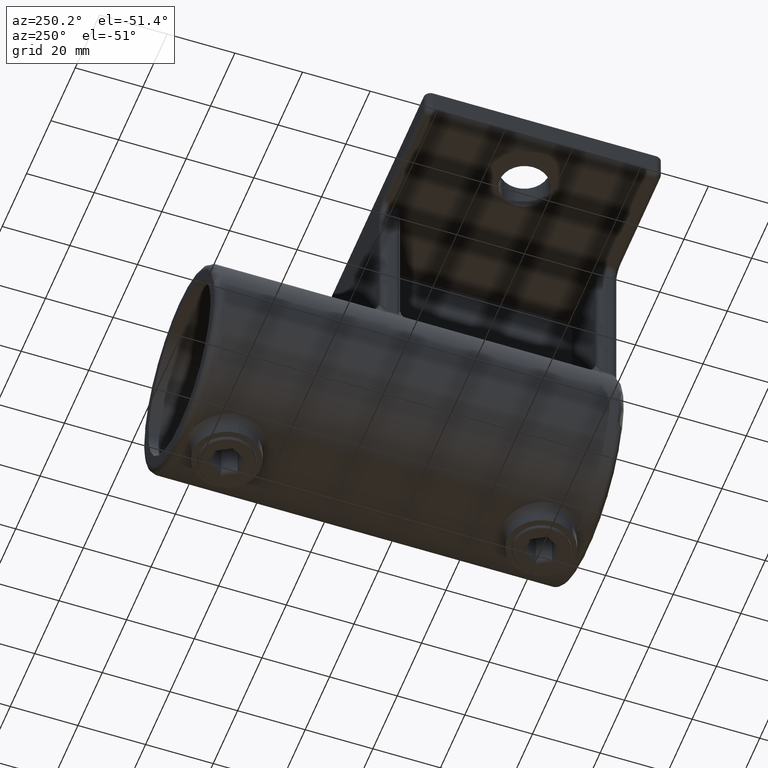
[diagram: clean part render]
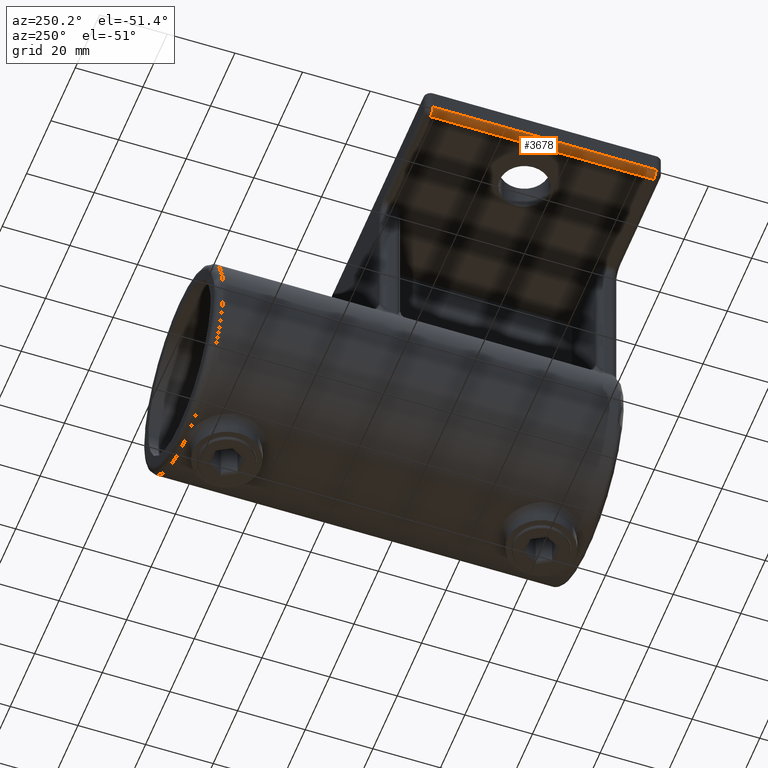
[diagram: same view with one face highlighted and labeled with its STEP entity id]
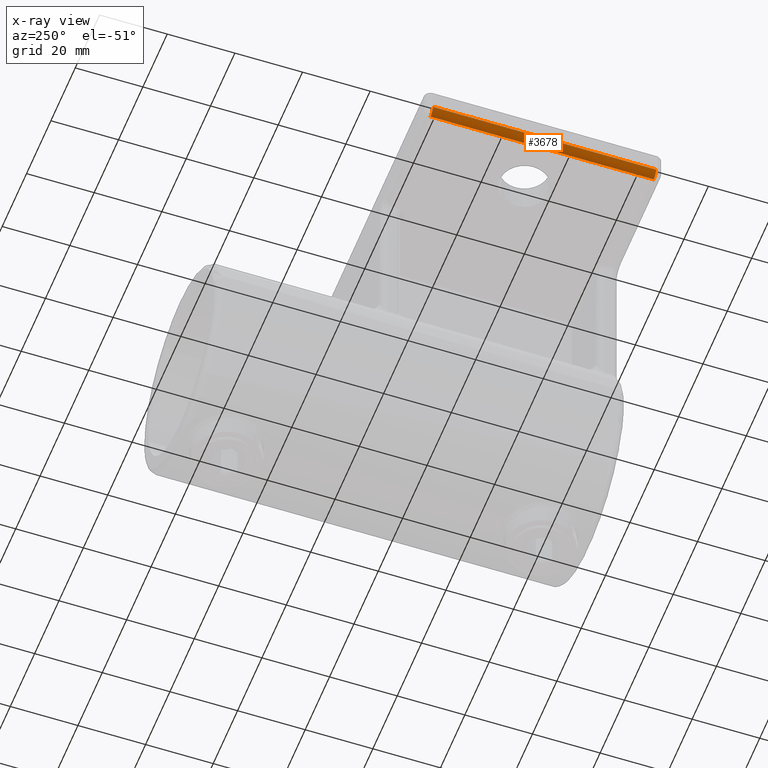
[diagram: x-ray of the same camera — body ghosted, the highlighted face saturated]
A machine part, auxiliary view. The second image highlights one B-rep face of the part: STEP entity #3678.
The next image is the same camera in x-ray: the body ghosted, the highlighted face saturated — about 0% of this face is hidden behind the body in this view.
In plain terms, the highlighted cylindrical surface (edge-blend (fillet) strip) has radius 2 mm, axis along (0, -1, 0).
Its self-contained STEP definition (entity closure, byte-faithful):
#14 = CARTESIAN_POINT ( 'NONE',  ( -59.00000000000001421, 35.00000000000000000, 2.000000000000000000 ) ) ;
#108 = ORIENTED_EDGE ( 'NONE', *, *, #1053, .F. ) ;
#274 = DIRECTION ( 'NONE',  ( 0.000000000000000000, 1.000000000000000000, 0.000000000000000000 ) ) ;
#346 = CIRCLE ( 'NONE', #3522, 2.000000000000000000 ) ;
#351 = AXIS2_PLACEMENT_3D ( 'NONE', #3680, #1420, #635 ) ;
#635 = DIRECTION ( 'NONE',  ( 0.000000000000000000, 0.000000000000000000, -1.000000000000000000 ) ) ;
#710 = LINE ( 'NONE', #2426, #2170 ) ;
#743 = CARTESIAN_POINT ( 'NONE',  ( -61.00000000000001421, 33.00000000000000000, 2.000000000000000000 ) ) ;
#1018 = EDGE_CURVE ( 'NONE', #1320, #1195, #3075, .T. ) ;
#1053 = EDGE_CURVE ( 'NONE', #1329, #3546, #346, .T. ) ;
#1195 = VERTEX_POINT ( 'NONE', #4057 ) ;
#1320 = VERTEX_POINT ( 'NONE', #1600 ) ;
#1329 = VERTEX_POINT ( 'NONE', #2773 ) ;
#1420 = DIRECTION ( 'NONE',  ( 0.000000000000000000, 1.000000000000000000, 0.000000000000000000 ) ) ;
#1600 = CARTESIAN_POINT ( 'NONE',  ( -59.00000000000001421, -33.00000000000000000, 0.000000000000000000 ) ) ;
#1958 = VECTOR ( 'NONE', #2583, 1000.000000000000000 ) ;
#2007 = ORIENTED_EDGE ( 'NONE', *, *, #1018, .T. ) ;
#2170 = VECTOR ( 'NONE', #3945, 1000.000000000000000 ) ;
#2342 = DIRECTION ( 'NONE',  ( 0.000000000000000000, 0.000000000000000000, -1.000000000000000000 ) ) ;
#2360 = EDGE_LOOP ( 'NONE', ( #2007, #2488, #108, #2707 ) ) ;
#2426 = CARTESIAN_POINT ( 'NONE',  ( -59.00000000000001421, 0.000000000000000000, 0.000000000000000000 ) ) ;
#2488 = ORIENTED_EDGE ( 'NONE', *, *, #3998, .F. ) ;
#2513 = CARTESIAN_POINT ( 'NONE',  ( -61.00000000000001421, 35.00000000000000000, 2.000000000000000000 ) ) ;
#2583 = DIRECTION ( 'NONE',  ( 0.000000000000000000, -1.000000000000000000, 0.000000000000000000 ) ) ;
#2707 = ORIENTED_EDGE ( 'NONE', *, *, #3336, .F. ) ;
#2715 = DIRECTION ( 'NONE',  ( 0.000000000000000000, -1.000000000000000000, 0.000000000000000000 ) ) ;
#2773 = CARTESIAN_POINT ( 'NONE',  ( -59.00000000000001421, 33.00000000000000000, 0.000000000000000000 ) ) ;
#3075 = CIRCLE ( 'NONE', #351, 2.000000000000000000 ) ;
#3237 = FACE_OUTER_BOUND ( 'NONE', #2360, .T. ) ;
#3302 = CARTESIAN_POINT ( 'NONE',  ( -59.00000000000001421, 33.00000000000000000, 2.000000000000000000 ) ) ;
#3336 = EDGE_CURVE ( 'NONE', #1320, #1329, #710, .T. ) ;
#3522 = AXIS2_PLACEMENT_3D ( 'NONE', #3302, #274, #4093 ) ;
#3546 = VERTEX_POINT ( 'NONE', #743 ) ;
#3678 = ADVANCED_FACE ( 'NONE', ( #3237 ), #4357, .T. ) ;
#3680 = CARTESIAN_POINT ( 'NONE',  ( -59.00000000000001421, -33.00000000000000000, 2.000000000000000000 ) ) ;
#3945 = DIRECTION ( 'NONE',  ( -0.000000000000000000, 1.000000000000000000, -0.000000000000000000 ) ) ;
#3998 = EDGE_CURVE ( 'NONE', #3546, #1195, #4023, .T. ) ;
#4023 = LINE ( 'NONE', #2513, #1958 ) ;
#4057 = CARTESIAN_POINT ( 'NONE',  ( -61.00000000000001421, -33.00000000000000000, 2.000000000000000000 ) ) ;
#4093 = DIRECTION ( 'NONE',  ( 0.000000000000000000, 0.000000000000000000, 1.000000000000000000 ) ) ;
#4355 = AXIS2_PLACEMENT_3D ( 'NONE', #14, #2715, #2342 ) ;
#4357 = CYLINDRICAL_SURFACE ( 'NONE', #4355, 2.000000000000000000 ) ;